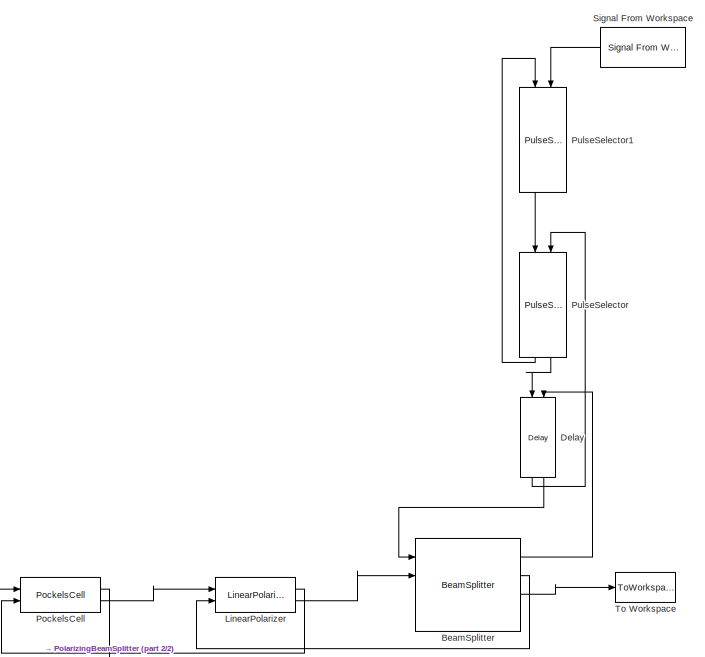
[diagram: root canvas - part 1/2, top right region]
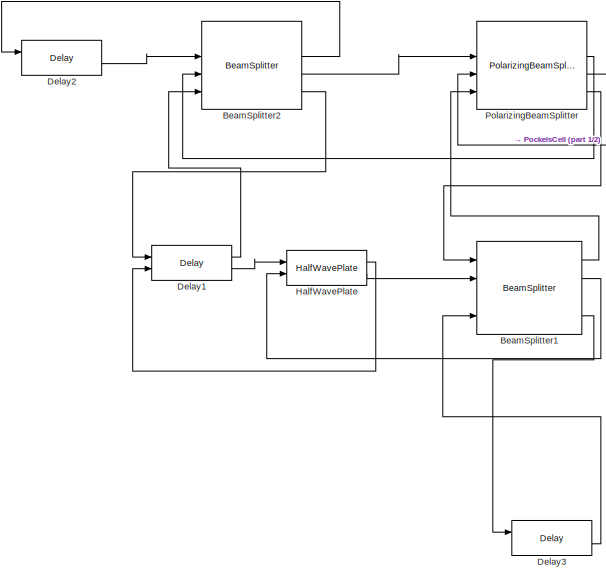
[diagram: root canvas - part 2/2, bottom left region]
MODEL slx_b350a661146a
KIND model
CONFIG InitFcn = initialize;
CONFIG StopFcn = stopscript
BLOCK [Reference] BeamSplitter  REF=BlockLib/BeamSplitter
  BackReflectance = 0.001
  Ghost = 0
  Ports = [4, 4]
  Reflectance = 0.50
  SourceBlock = BlockLib/BeamSplitter
  Transmittance = 0.50
BLOCK [Reference] BeamSplitter1  REF=BlockLib/BeamSplitter
  BackReflectance = 0.001
  Ghost = 0.005
  Ports = [4, 4]
  Reflectance = 0.50
  SourceBlock = BlockLib/BeamSplitter
  Transmittance = 0.50
BLOCK [Reference] BeamSplitter2  REF=BlockLib/BeamSplitter
  BackReflectance = 0.001
  Ghost = 0.005
  Ports = [4, 4]
  Reflectance = 0.50
  SourceBlock = BlockLib/BeamSplitter
  Transmittance = 0.50
BLOCK [Reference] Delay  REF=BlockLib/Delay
  DelayAmt = 0
  Ports = [2, 2]
  SourceBlock = BlockLib/Delay
BLOCK [Reference] Delay1  REF=BlockLib/Delay
  DelayAmt = 1.3227e-08
  Ports = [2, 2]
  SourceBlock = BlockLib/Delay
BLOCK [Reference] Delay2  REF=BlockLib/Delay
  DelayAmt = 1.3000e-08
  Ports = [2, 2]
  SourceBlock = BlockLib/Delay
BLOCK [Reference] Delay3  REF=BlockLib/Delay
  DelayAmt = 1.9664e-08
  Ports = [2, 2]
  SourceBlock = BlockLib/Delay
BLOCK [Reference] HalfWavePlate  REF=BlockLib/HalfWavePlate
  Ports = [2, 2]
  Psi = pi/4
  SourceBlock = BlockLib/HalfWavePlate
  Transmittence = 1
BLOCK [Reference] LinearPolarizer  REF=BlockLib/LinearPolarizer
  ExtinctionRatio = 200000000
  Ports = [2, 2]
  Psi = pi/2
  SourceBlock = BlockLib/LinearPolarizer
  Transmittence = 0.81
BLOCK [Reference] PockelsCell  REF=BlockLib/PockelsCell
  ControlPowers = [1,1]
  PCTimings = [0.0103    0.1236    0.1647    0.2006]*1e-5
  Ports = [2, 2]
  Psi = pi/4
  SourceBlock = BlockLib/PockelsCell
BLOCK [Reference] PolarizingBeamSplitter  REF=BlockLib/PolarizingBeamSplitter
  BackReflectance = 0.001
  Ghost = 0.005
  Ports = [4, 4]
  Psi = pi/2
  Reflectance = 0.50
  SourceBlock = BlockLib/PolarizingBeamSplitter
  Transmittance = 0.50
BLOCK [Reference] PulseSelector  REF=BlockLib/PulseSelector
  ControlPowers = [0.5000,    1.0000,    1.0000,    1.0000, 1.0000,    1.0000,    1.0000,    0.5000]
  PCTimings = [0.0012    0.0014    0.0103    0.0105    0.0376    0.0378    0.0779    0.0781    0.1234    0.1236  0.1637    0.1639    0.1910    0.1912    0.2014    0.2016]*1e-5
  Ports = [2, 2]
  SourceBlock = BlockLib/PulseSelector
BLOCK [Reference] PulseSelector1  REF=BlockLib/PulseSelector
  ControlPowers = [0.5000    1.0000    1.0000    1.0000    1.0000    1.0000    1.0000    0.5000]
  PCTimings = [0.0012    0.0014    0.0103    0.0105    0.0376    0.0378    0.0779    0.0781    0.1234    0.1236  0.1637    0.1639    0.1910    0.1912    0.2014    0.2016]*1e-5
  Ports = [2, 2]
  SourceBlock = BlockLib/PulseSelector
BLOCK [Reference] Signal From Workspace  REF=dspsrcs4/Signal From
Workspace
  OutputAfterFinalValue = Setting to zero
  Ports = [0, 1]
  SourceBlock = dspsrcs4/Signal From\nWorkspace
  SourceType = Signal From Workspace
  Ts = 1
  X = inputsignal
  ignoreOrWarnInputAndFrameLengths = off
  nsamps = 1
BLOCK [ToWorkspace] To Workspace
  FixptAsFi = on
  MaxDataPoints = inf
  Ports = [1]
  SampleTime = -1
  Save2DSignal = 3-D array (concatenate along third dimension)
  SaveFormat = Timeseries
  VariableName = simout
LINE BeamSplitter1:1 -> PolarizingBeamSplitter:4
LINE BeamSplitter1:2 -> HalfWavePlate:2
LINE BeamSplitter1:4 -> Delay3:1
LINE BeamSplitter2:2 -> Delay2:1
LINE BeamSplitter2:3 -> PolarizingBeamSplitter:2
LINE BeamSplitter2:4 -> Delay1:1
LINE BeamSplitter:1 -> Delay:2
LINE BeamSplitter:2 -> LinearPolarizer:2
LINE BeamSplitter:3 -> To Workspace:1
LINE Delay1:1 -> BeamSplitter2:4
LINE Delay1:2 -> HalfWavePlate:1
LINE Delay2:2 -> BeamSplitter2:2
LINE Delay3:2 -> BeamSplitter1:4
LINE Delay:1 -> PulseSelector:2
LINE Delay:2 -> BeamSplitter:1
LINE HalfWavePlate:1 -> Delay1:2
LINE HalfWavePlate:2 -> BeamSplitter1:2
LINE LinearPolarizer:1 -> PockelsCell:2
LINE LinearPolarizer:2 -> BeamSplitter:2
LINE PockelsCell:1 -> PolarizingBeamSplitter:3
LINE PockelsCell:2 -> LinearPolarizer:1
LINE PolarizingBeamSplitter:2 -> BeamSplitter2:3
LINE PolarizingBeamSplitter:3 -> PockelsCell:1
LINE PolarizingBeamSplitter:4 -> BeamSplitter1:1
LINE PulseSelector1:1 -> PulseSelector:1
LINE PulseSelector:1 -> PulseSelector1:1
LINE PulseSelector:2 -> Delay:1
LINE Signal From Workspace:1 -> PulseSelector1:2
